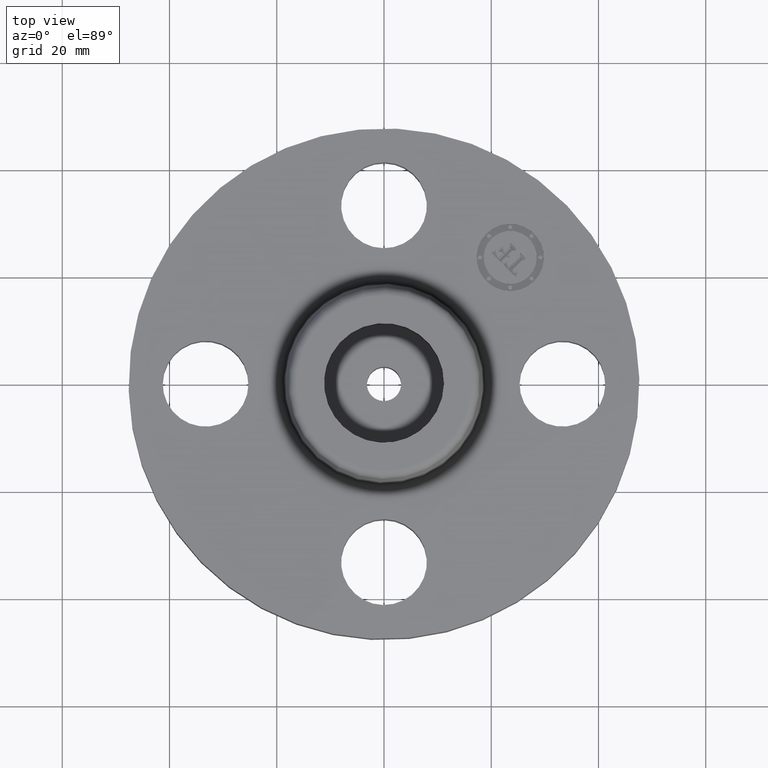
[diagram: clean part render]
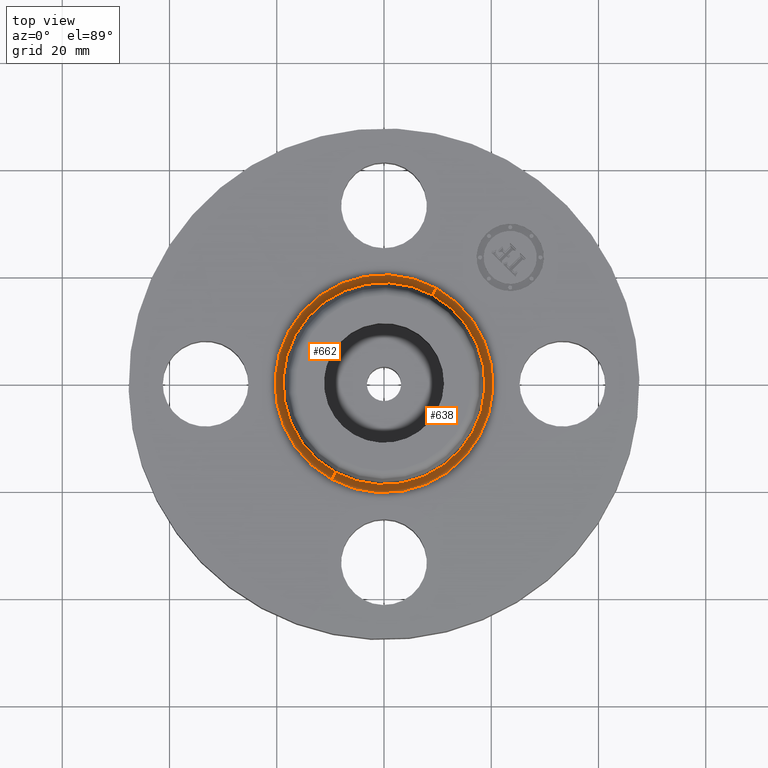
[diagram: same view with one multi-face feature highlighted, each face labeled with its STEP entity id]
A machine part, top view. The highlighted faces form ONE feature: a constant-radius fillet chain: 2 tangent blend faces with common blend radius 1.524 mm. The faces share edges in the B-rep.
Their STEP definitions:
[1] entity #662 (Torus):
#484=AXIS2_PLACEMENT_3D('Circle Axis2P3D',#482,#483,$) ;
#624=AXIS2_PLACEMENT_3D('Circle Axis2P3D',#622,#623,$) ;
#629=AXIS2_PLACEMENT_3D('Circle Axis2P3D',#627,#628,$) ;
#649=AXIS2_PLACEMENT_3D('Torus Axis2P3D',#646,#647,#648) ;
#653=AXIS2_PLACEMENT_3D('Circle Axis2P3D',#651,#652,$) ;
#448=CARTESIAN_POINT('Vertex',(0.355377782268,0.65051466701,0.549581109342)) ;
#450=CARTESIAN_POINT('Vertex',(-0.355377782268,-0.65051466701,0.549581109342)) ;
#482=CARTESIAN_POINT('Axis2P3D Location',(0.,0.,0.549581109342)) ;
#617=CARTESIAN_POINT('Vertex',(0.383706301512,0.702369673661,0.500000000002)) ;
#619=CARTESIAN_POINT('Vertex',(-0.383706301512,-0.702369673661,0.500000000002)) ;
#622=CARTESIAN_POINT('Axis2P3D Location',(0.383706301512,0.702369673661,0.560000000002)) ;
#627=CARTESIAN_POINT('Axis2P3D Location',(-0.383706301512,-0.702369673661,0.560000000002)) ;
#646=CARTESIAN_POINT('Axis2P3D Location',(0.,0.,0.560000000002)) ;
#651=CARTESIAN_POINT('Axis2P3D Location',(0.,0.,0.500000000002)) ;
#483=DIRECTION('Axis2P3D Direction',(-0.,0.,-0.0393700787402)) ;
#623=DIRECTION('Axis2P3D Direction',(-0.0345504945626,0.0188750212049,0.)) ;
#628=DIRECTION('Axis2P3D Direction',(0.0345504945626,-0.0188750212049,0.)) ;
#647=DIRECTION('Axis2P3D Direction',(0.,0.,-0.0393700787402)) ;
#648=DIRECTION('Axis2P3D XDirection',(-0.0188750212049,-0.0345504945626,0.)) ;
#652=DIRECTION('Axis2P3D Direction',(-0.,0.,-0.0393700787402)) ;
#657=ORIENTED_EDGE('',*,*,#655,.F.) ;
#658=ORIENTED_EDGE('',*,*,#631,.T.) ;
#659=ORIENTED_EDGE('',*,*,#486,.T.) ;
#660=ORIENTED_EDGE('',*,*,#626,.F.) ;
#662=ADVANCED_FACE('PartBody',(#661),#650,.F.) ;
#485=CIRCLE('generated circle',#484,0.741257512693) ;
#625=CIRCLE('generated circle',#624,0.0600000000002) ;
#630=CIRCLE('generated circle',#629,0.0600000000002) ;
#654=CIRCLE('generated circle',#653,0.800345977874) ;
#650=TOROIDAL_SURFACE('homeo Torus',#649,0.800345977874,0.0600000000002) ;
#486=EDGE_CURVE('',#451,#449,#485,.T.) ;
#626=EDGE_CURVE('',#618,#449,#625,.T.) ;
#631=EDGE_CURVE('',#620,#451,#630,.T.) ;
#655=EDGE_CURVE('',#620,#618,#654,.T.) ;
#656=EDGE_LOOP('',(#657,#658,#659,#660)) ;
#661=FACE_OUTER_BOUND('',#656,.T.) ;
#449=VERTEX_POINT('',#448) ;
#451=VERTEX_POINT('',#450) ;
#618=VERTEX_POINT('',#617) ;
#620=VERTEX_POINT('',#619) ;
[2] entity #638 (Torus):
#446=AXIS2_PLACEMENT_3D('Circle Axis2P3D',#444,#445,$) ;
#611=AXIS2_PLACEMENT_3D('Torus Axis2P3D',#608,#609,#610) ;
#615=AXIS2_PLACEMENT_3D('Circle Axis2P3D',#613,#614,$) ;
#624=AXIS2_PLACEMENT_3D('Circle Axis2P3D',#622,#623,$) ;
#629=AXIS2_PLACEMENT_3D('Circle Axis2P3D',#627,#628,$) ;
#444=CARTESIAN_POINT('Axis2P3D Location',(0.,0.,0.549581109342)) ;
#448=CARTESIAN_POINT('Vertex',(0.355377782268,0.65051466701,0.549581109342)) ;
#450=CARTESIAN_POINT('Vertex',(-0.355377782268,-0.65051466701,0.549581109342)) ;
#608=CARTESIAN_POINT('Axis2P3D Location',(0.,0.,0.560000000002)) ;
#613=CARTESIAN_POINT('Axis2P3D Location',(0.,0.,0.500000000002)) ;
#617=CARTESIAN_POINT('Vertex',(0.383706301512,0.702369673661,0.500000000002)) ;
#619=CARTESIAN_POINT('Vertex',(-0.383706301512,-0.702369673661,0.500000000002)) ;
#622=CARTESIAN_POINT('Axis2P3D Location',(0.383706301512,0.702369673661,0.560000000002)) ;
#627=CARTESIAN_POINT('Axis2P3D Location',(-0.383706301512,-0.702369673661,0.560000000002)) ;
#445=DIRECTION('Axis2P3D Direction',(-0.,0.,-0.0393700787402)) ;
#609=DIRECTION('Axis2P3D Direction',(0.,0.,-0.0393700787402)) ;
#610=DIRECTION('Axis2P3D XDirection',(0.0188750212049,0.0345504945626,0.)) ;
#614=DIRECTION('Axis2P3D Direction',(-0.,0.,-0.0393700787402)) ;
#623=DIRECTION('Axis2P3D Direction',(-0.0345504945626,0.0188750212049,0.)) ;
#628=DIRECTION('Axis2P3D Direction',(0.0345504945626,-0.0188750212049,0.)) ;
#633=ORIENTED_EDGE('',*,*,#621,.F.) ;
#634=ORIENTED_EDGE('',*,*,#626,.T.) ;
#635=ORIENTED_EDGE('',*,*,#452,.T.) ;
#636=ORIENTED_EDGE('',*,*,#631,.F.) ;
#638=ADVANCED_FACE('PartBody',(#637),#612,.F.) ;
#447=CIRCLE('generated circle',#446,0.741257512693) ;
#616=CIRCLE('generated circle',#615,0.800345977874) ;
#625=CIRCLE('generated circle',#624,0.0600000000002) ;
#630=CIRCLE('generated circle',#629,0.0600000000002) ;
#612=TOROIDAL_SURFACE('homeo Torus',#611,0.800345977874,0.0600000000002) ;
#452=EDGE_CURVE('',#449,#451,#447,.T.) ;
#621=EDGE_CURVE('',#618,#620,#616,.T.) ;
#626=EDGE_CURVE('',#618,#449,#625,.T.) ;
#631=EDGE_CURVE('',#620,#451,#630,.T.) ;
#632=EDGE_LOOP('',(#633,#634,#635,#636)) ;
#637=FACE_OUTER_BOUND('',#632,.T.) ;
#449=VERTEX_POINT('',#448) ;
#451=VERTEX_POINT('',#450) ;
#618=VERTEX_POINT('',#617) ;
#620=VERTEX_POINT('',#619) ;